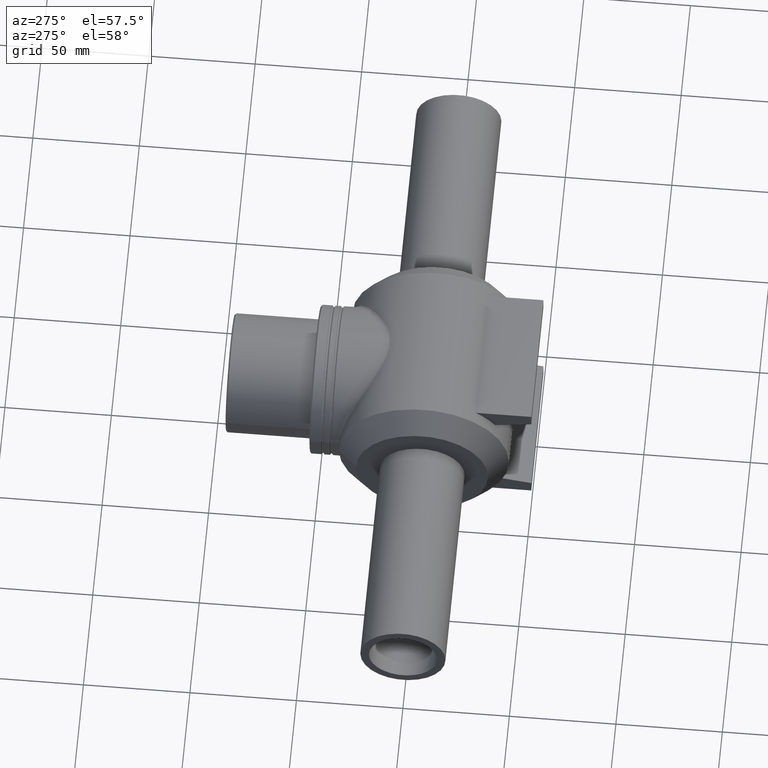
[diagram: clean part render]
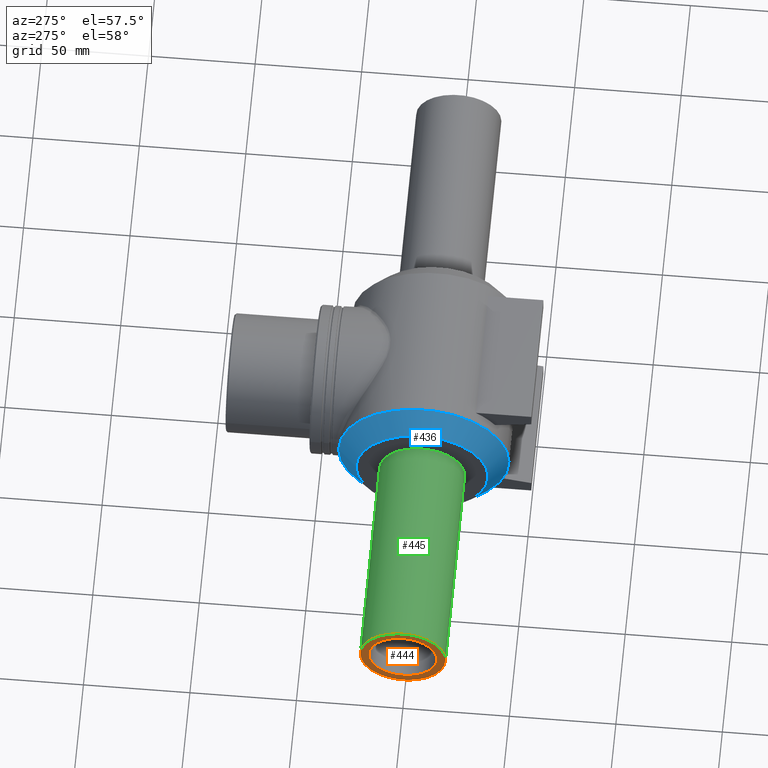
[diagram: same view with three faces highlighted in distinct colors, each labeled with its STEP entity id]
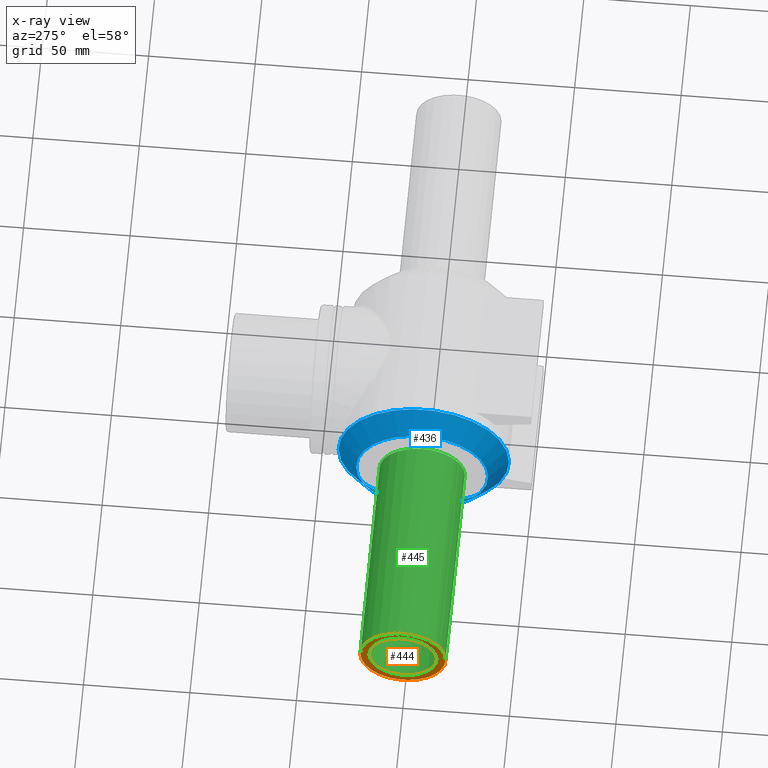
[diagram: x-ray of the same camera — body ghosted, the three highlighted faces saturated]
A machine part, auxiliary view with three faces highlighted in distinct colors.
The next image is the same camera in x-ray (body ghosted, the three faces saturated) — at least one of them is partly hidden behind the body in this view.
Their STEP definitions:

[orange] entity #444 — the highlighted planar face has unit normal (-1, 0, 0).
#33=PLANE('',#503);
#101=FACE_BOUND('',#198,.T.);
#142=FACE_OUTER_BOUND('',#197,.T.);
#197=EDGE_LOOP('',(#408));
#198=EDGE_LOOP('',(#409));
#227=CIRCLE('',#502,16.);
#228=CIRCLE('',#504,20.);
#266=VERTEX_POINT('',#980);
#267=VERTEX_POINT('',#983);
#314=EDGE_CURVE('',#266,#266,#227,.T.);
#315=EDGE_CURVE('',#267,#267,#228,.T.);
#408=ORIENTED_EDGE('',*,*,#315,.F.);
#409=ORIENTED_EDGE('',*,*,#314,.T.);
#444=ADVANCED_FACE('',(#142,#101),#33,.T.);
#502=AXIS2_PLACEMENT_3D('',#981,#636,#637);
#503=AXIS2_PLACEMENT_3D('',#982,#638,#639);
#504=AXIS2_PLACEMENT_3D('',#984,#640,#641);
#636=DIRECTION('center_axis',(1.,0.,0.));
#637=DIRECTION('ref_axis',(0.,0.,-1.));
#638=DIRECTION('center_axis',(-1.,0.,0.));
#639=DIRECTION('ref_axis',(0.,0.,1.));
#640=DIRECTION('center_axis',(1.,0.,0.));
#641=DIRECTION('ref_axis',(0.,0.,-1.));
#980=CARTESIAN_POINT('',(-150.,16.,0.));
#981=CARTESIAN_POINT('Origin',(-150.,0.,0.));
#982=CARTESIAN_POINT('Origin',(-150.,20.,0.));
#983=CARTESIAN_POINT('',(-150.,20.,0.));
#984=CARTESIAN_POINT('Origin',(-150.,0.,0.));

[blue] entity #436 — the highlighted conical surface has half-angle 45 deg.
#36=CONICAL_SURFACE('',#488,35.5,45.);
#92=FACE_BOUND('',#182,.T.);
#135=FACE_OUTER_BOUND('',#181,.T.);
#181=EDGE_LOOP('',(#392));
#182=EDGE_LOOP('',(#393));
#205=CIRCLE('',#452,40.);
#219=CIRCLE('',#486,31.);
#232=VERTEX_POINT('',#876);
#258=VERTEX_POINT('',#956);
#272=EDGE_CURVE('',#232,#232,#205,.T.);
#306=EDGE_CURVE('',#258,#258,#219,.T.);
#392=ORIENTED_EDGE('',*,*,#272,.F.);
#393=ORIENTED_EDGE('',*,*,#306,.T.);
#436=ADVANCED_FACE('',(#135,#92),#36,.T.);
#452=AXIS2_PLACEMENT_3D('',#877,#516,#517);
#486=AXIS2_PLACEMENT_3D('',#957,#604,#605);
#488=AXIS2_PLACEMENT_3D('',#960,#608,#609);
#516=DIRECTION('center_axis',(1.,0.,0.));
#517=DIRECTION('ref_axis',(0.,0.,-1.));
#604=DIRECTION('center_axis',(1.,0.,0.));
#605=DIRECTION('ref_axis',(0.,0.,-1.));
#608=DIRECTION('center_axis',(1.,0.,0.));
#609=DIRECTION('ref_axis',(0.,1.,0.));
#876=CARTESIAN_POINT('',(-38.,40.,0.));
#877=CARTESIAN_POINT('Origin',(-38.,0.,0.));
#956=CARTESIAN_POINT('',(-47.,31.,0.));
#957=CARTESIAN_POINT('Origin',(-47.,0.,0.));
#960=CARTESIAN_POINT('Origin',(-42.5,0.,0.));

[green] entity #445 — the highlighted cylindrical surface (bore or boss wall) has radius 20 mm, axis along (1, 0, 0).
#102=FACE_BOUND('',#200,.T.);
#111=CYLINDRICAL_SURFACE('',#505,20.);
#143=FACE_OUTER_BOUND('',#199,.T.);
#199=EDGE_LOOP('',(#410));
#200=EDGE_LOOP('',(#411));
#220=CIRCLE('',#487,20.);
#228=CIRCLE('',#504,20.);
#259=VERTEX_POINT('',#958);
#267=VERTEX_POINT('',#983);
#307=EDGE_CURVE('',#259,#259,#220,.T.);
#315=EDGE_CURVE('',#267,#267,#228,.T.);
#410=ORIENTED_EDGE('',*,*,#307,.F.);
#411=ORIENTED_EDGE('',*,*,#315,.T.);
#445=ADVANCED_FACE('',(#143,#102),#111,.T.);
#487=AXIS2_PLACEMENT_3D('',#959,#606,#607);
#504=AXIS2_PLACEMENT_3D('',#984,#640,#641);
#505=AXIS2_PLACEMENT_3D('',#985,#642,#643);
#606=DIRECTION('center_axis',(1.,0.,0.));
#607=DIRECTION('ref_axis',(0.,0.,-1.));
#640=DIRECTION('center_axis',(1.,0.,0.));
#641=DIRECTION('ref_axis',(0.,0.,-1.));
#642=DIRECTION('center_axis',(1.,0.,0.));
#643=DIRECTION('ref_axis',(0.,1.,0.));
#958=CARTESIAN_POINT('',(-47.,20.,0.));
#959=CARTESIAN_POINT('Origin',(-47.,0.,0.));
#983=CARTESIAN_POINT('',(-150.,20.,0.));
#984=CARTESIAN_POINT('Origin',(-150.,0.,0.));
#985=CARTESIAN_POINT('Origin',(-98.5,0.,0.));